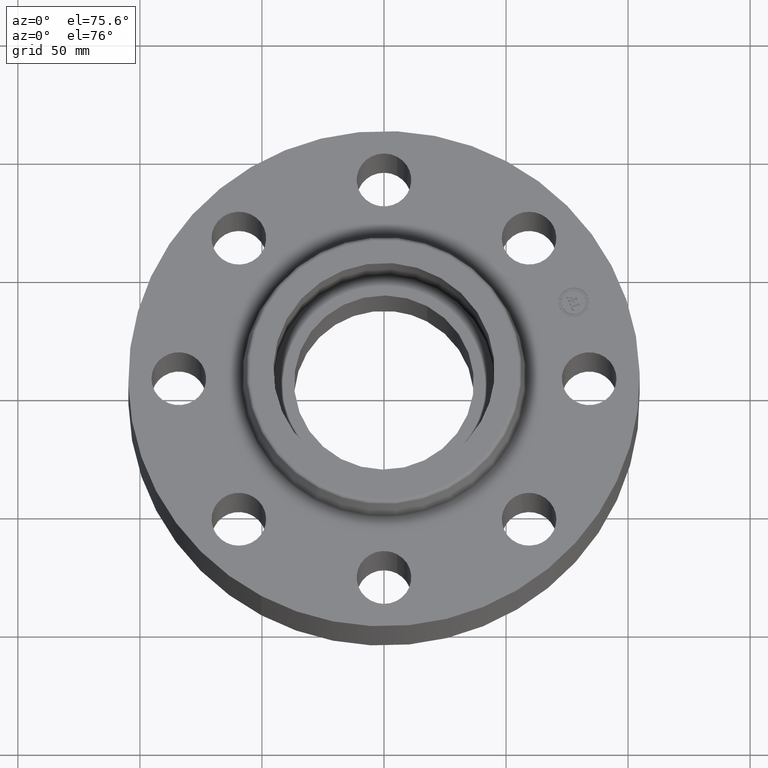
[diagram: clean part render]
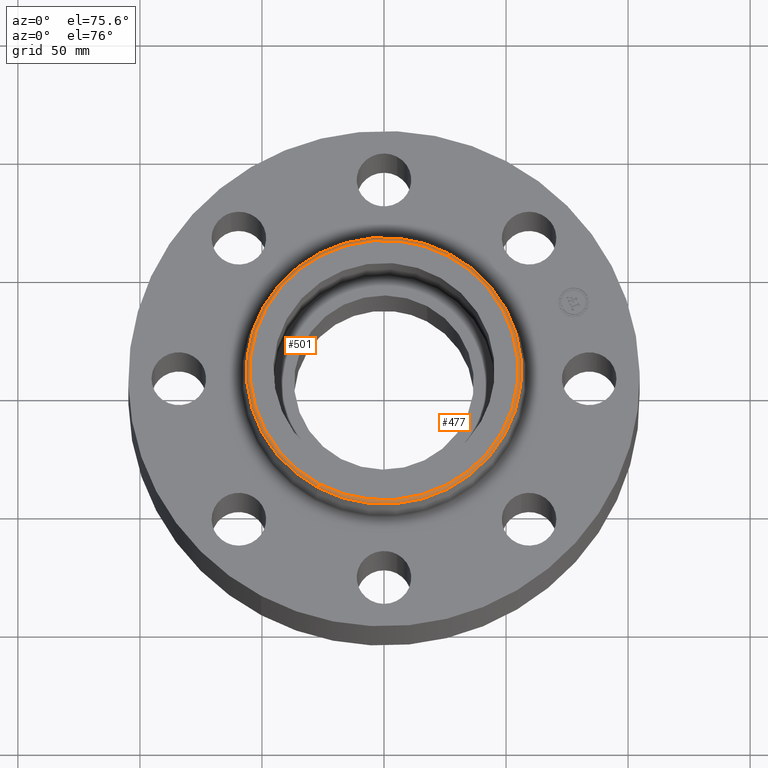
[diagram: same view with one multi-face feature highlighted, each face labeled with its STEP entity id]
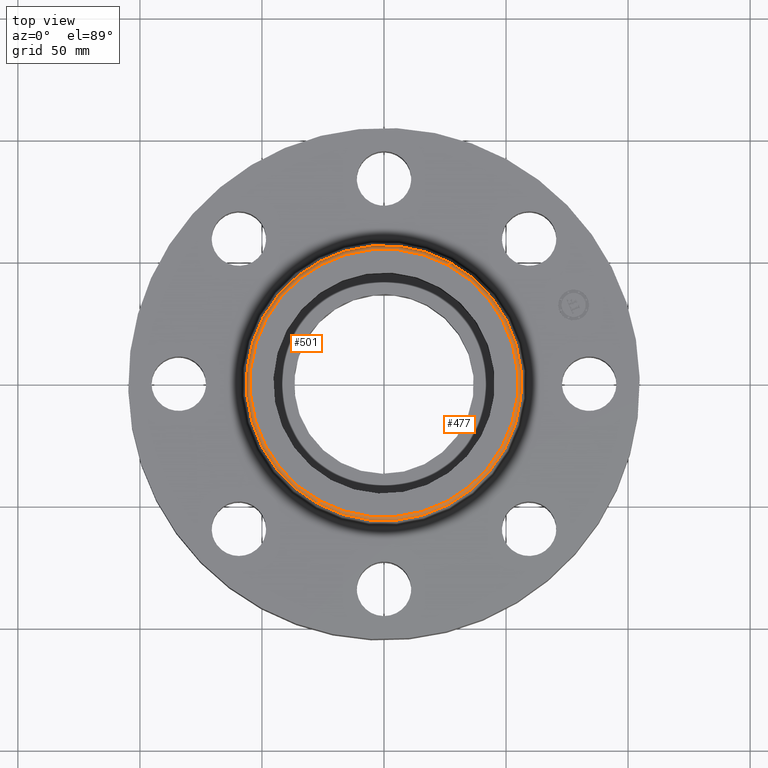
[diagram: same view with one multi-face feature highlighted, each face labeled with its STEP entity id]
A machine part, auxiliary view. The highlighted faces form ONE feature: a constant-radius fillet chain: 2 tangent blend faces with common blend radius 1.524 mm. The faces share edges in the B-rep.
A second angle (top view) of the same feature is appended — it is thin or edge-on in the first view.
Their STEP definitions:
[1] entity #477 (Torus):
#240=AXIS2_PLACEMENT_3D('Circle Axis2P3D',#238,#239,$) ;
#450=AXIS2_PLACEMENT_3D('Torus Axis2P3D',#447,#448,#449) ;
#454=AXIS2_PLACEMENT_3D('Circle Axis2P3D',#452,#453,$) ;
#463=AXIS2_PLACEMENT_3D('Circle Axis2P3D',#461,#462,$) ;
#468=AXIS2_PLACEMENT_3D('Circle Axis2P3D',#466,#467,$) ;
#238=CARTESIAN_POINT('Axis2P3D Location',(4.36650890423E-011,-1.99240099484E-011,1.81000000001)) ;
#242=CARTESIAN_POINT('Vertex',(1.03599587831,1.896377735,1.81000000001)) ;
#244=CARTESIAN_POINT('Vertex',(-1.03599587831,-1.896377735,1.81000000001)) ;
#447=CARTESIAN_POINT('Axis2P3D Location',(0.,0.,1.75000000001)) ;
#452=CARTESIAN_POINT('Axis2P3D Location',(0.,0.,1.76041889067)) ;
#456=CARTESIAN_POINT('Vertex',(1.06432439756,1.94823274165,1.76041889067)) ;
#458=CARTESIAN_POINT('Vertex',(-1.06432439756,-1.94823274165,1.76041889067)) ;
#461=CARTESIAN_POINT('Axis2P3D Location',(1.03599587831,1.89637773499,1.75000000001)) ;
#466=CARTESIAN_POINT('Axis2P3D Location',(-1.03599587831,-1.89637773499,1.75000000001)) ;
#239=DIRECTION('Axis2P3D Direction',(0.,0.,-0.0393700787402)) ;
#448=DIRECTION('Axis2P3D Direction',(0.,0.,-0.0393700787402)) ;
#449=DIRECTION('Axis2P3D XDirection',(0.0188750212049,0.0345504945626,0.)) ;
#453=DIRECTION('Axis2P3D Direction',(-0.,0.,-0.0393700787402)) ;
#462=DIRECTION('Axis2P3D Direction',(-0.0345504945626,0.0188750212049,0.)) ;
#467=DIRECTION('Axis2P3D Direction',(0.0345504945626,-0.0188750212049,0.)) ;
#472=ORIENTED_EDGE('',*,*,#460,.F.) ;
#473=ORIENTED_EDGE('',*,*,#465,.T.) ;
#474=ORIENTED_EDGE('',*,*,#246,.T.) ;
#475=ORIENTED_EDGE('',*,*,#470,.F.) ;
#477=ADVANCED_FACE('PartBody',(#476),#451,.T.) ;
#241=CIRCLE('generated circle',#240,2.16091091292) ;
#455=CIRCLE('generated circle',#454,2.21999937812) ;
#464=CIRCLE('generated circle',#463,0.0600000000002) ;
#469=CIRCLE('generated circle',#468,0.0600000000002) ;
#451=TOROIDAL_SURFACE('homeo Torus',#450,2.16091091294,0.0600000000002) ;
#246=EDGE_CURVE('',#243,#245,#241,.T.) ;
#460=EDGE_CURVE('',#457,#459,#455,.T.) ;
#465=EDGE_CURVE('',#457,#243,#464,.F.) ;
#470=EDGE_CURVE('',#459,#245,#469,.F.) ;
#471=EDGE_LOOP('',(#472,#473,#474,#475)) ;
#476=FACE_OUTER_BOUND('',#471,.T.) ;
#243=VERTEX_POINT('',#242) ;
#245=VERTEX_POINT('',#244) ;
#457=VERTEX_POINT('',#456) ;
#459=VERTEX_POINT('',#458) ;
[2] entity #501 (Torus):
#249=AXIS2_PLACEMENT_3D('Circle Axis2P3D',#247,#248,$) ;
#463=AXIS2_PLACEMENT_3D('Circle Axis2P3D',#461,#462,$) ;
#468=AXIS2_PLACEMENT_3D('Circle Axis2P3D',#466,#467,$) ;
#488=AXIS2_PLACEMENT_3D('Torus Axis2P3D',#485,#486,#487) ;
#492=AXIS2_PLACEMENT_3D('Circle Axis2P3D',#490,#491,$) ;
#242=CARTESIAN_POINT('Vertex',(1.03599587831,1.896377735,1.81000000001)) ;
#244=CARTESIAN_POINT('Vertex',(-1.03599587831,-1.896377735,1.81000000001)) ;
#247=CARTESIAN_POINT('Axis2P3D Location',(-4.36650890423E-011,2.77852981218E-011,1.81000000001)) ;
#456=CARTESIAN_POINT('Vertex',(1.06432439756,1.94823274165,1.76041889067)) ;
#458=CARTESIAN_POINT('Vertex',(-1.06432439756,-1.94823274165,1.76041889067)) ;
#461=CARTESIAN_POINT('Axis2P3D Location',(1.03599587831,1.89637773499,1.75000000001)) ;
#466=CARTESIAN_POINT('Axis2P3D Location',(-1.03599587831,-1.89637773499,1.75000000001)) ;
#485=CARTESIAN_POINT('Axis2P3D Location',(0.,0.,1.75000000001)) ;
#490=CARTESIAN_POINT('Axis2P3D Location',(0.,0.,1.76041889067)) ;
#248=DIRECTION('Axis2P3D Direction',(0.,0.,-0.0393700787402)) ;
#462=DIRECTION('Axis2P3D Direction',(-0.0345504945626,0.0188750212049,0.)) ;
#467=DIRECTION('Axis2P3D Direction',(0.0345504945626,-0.0188750212049,0.)) ;
#486=DIRECTION('Axis2P3D Direction',(0.,0.,-0.0393700787402)) ;
#487=DIRECTION('Axis2P3D XDirection',(-0.0188750212049,-0.0345504945626,0.)) ;
#491=DIRECTION('Axis2P3D Direction',(-0.,0.,-0.0393700787402)) ;
#496=ORIENTED_EDGE('',*,*,#494,.F.) ;
#497=ORIENTED_EDGE('',*,*,#470,.T.) ;
#498=ORIENTED_EDGE('',*,*,#251,.T.) ;
#499=ORIENTED_EDGE('',*,*,#465,.F.) ;
#501=ADVANCED_FACE('PartBody',(#500),#489,.T.) ;
#250=CIRCLE('generated circle',#249,2.16091091292) ;
#464=CIRCLE('generated circle',#463,0.0600000000002) ;
#469=CIRCLE('generated circle',#468,0.0600000000002) ;
#493=CIRCLE('generated circle',#492,2.21999937812) ;
#489=TOROIDAL_SURFACE('homeo Torus',#488,2.16091091294,0.0600000000002) ;
#251=EDGE_CURVE('',#245,#243,#250,.T.) ;
#465=EDGE_CURVE('',#457,#243,#464,.F.) ;
#470=EDGE_CURVE('',#459,#245,#469,.F.) ;
#494=EDGE_CURVE('',#459,#457,#493,.T.) ;
#495=EDGE_LOOP('',(#496,#497,#498,#499)) ;
#500=FACE_OUTER_BOUND('',#495,.T.) ;
#243=VERTEX_POINT('',#242) ;
#245=VERTEX_POINT('',#244) ;
#457=VERTEX_POINT('',#456) ;
#459=VERTEX_POINT('',#458) ;